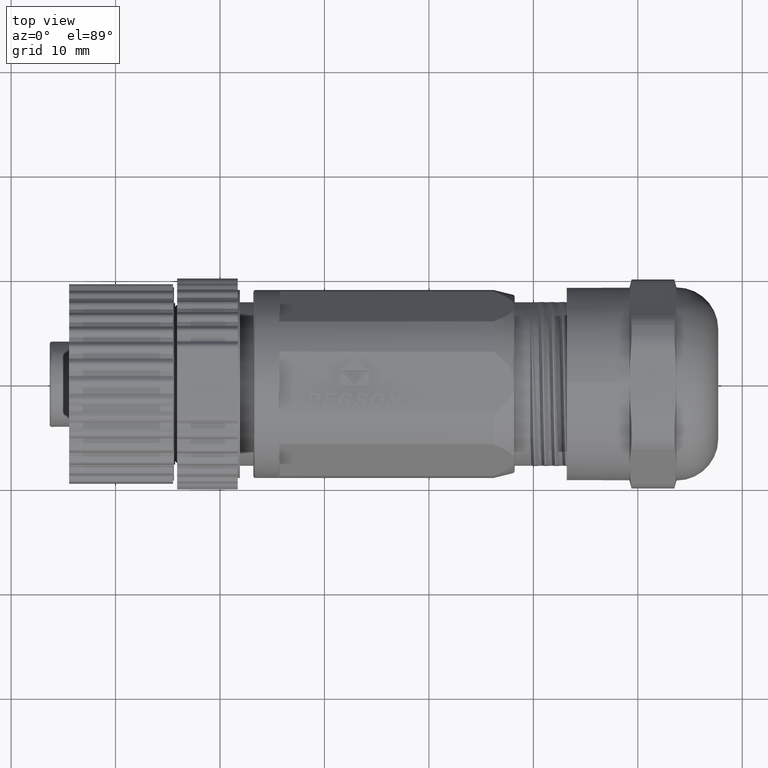
[diagram: clean part render]
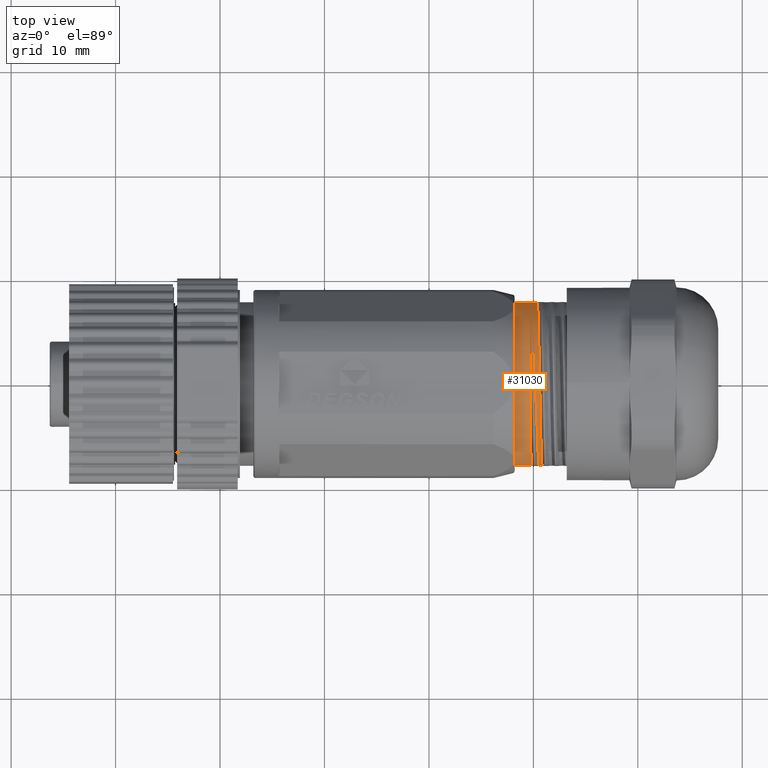
[diagram: same view with one face highlighted and labeled with its STEP entity id]
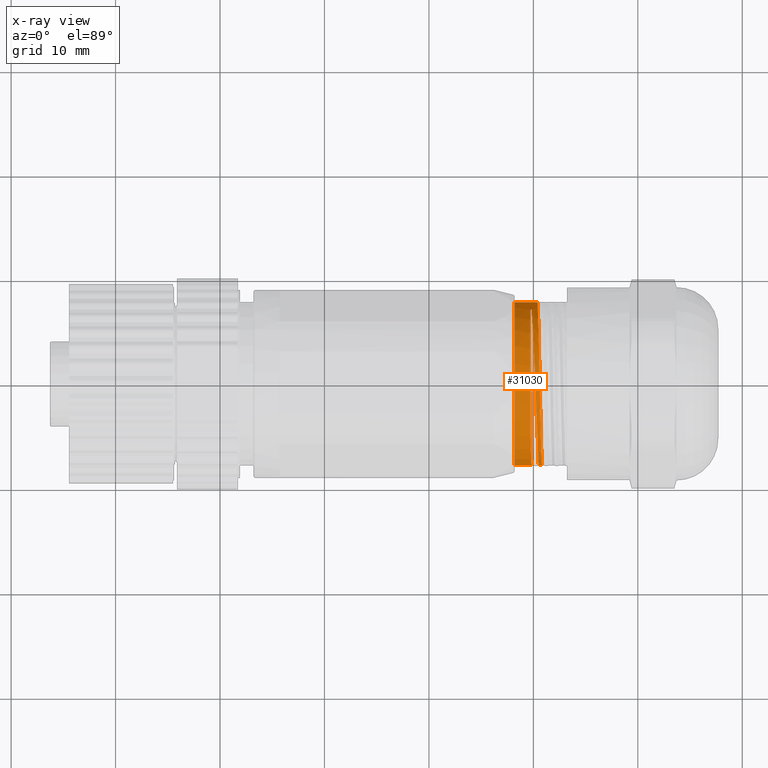
[diagram: x-ray of the same camera — body ghosted, the highlighted face saturated]
A machine part, top view. The second image highlights one B-rep face of the part: STEP entity #31030.
The next image is the same camera in x-ray: the body ghosted, the highlighted face saturated — about 0% of this face is hidden behind the body in this view.
In plain terms, the highlighted cylindrical surface (partial cylindrical patch) has radius 7.95 mm, axis along (1, 0, 0).
Its self-contained STEP definition (entity closure, byte-faithful):
#8304=CARTESIAN_POINT('',(3.82E1,0.E0,0.E0));
#8305=DIRECTION('',(1.E0,0.E0,0.E0));
#8306=DIRECTION('',(0.E0,9.811320754717E-1,1.933386936974E-1));
#8307=AXIS2_PLACEMENT_3D('',#8304,#8305,#8306);
#8322=DIRECTION('',(1.E0,0.E0,0.E0));
#8323=VECTOR('',#8322,1.620241579782E0);
#8324=CARTESIAN_POINT('',(3.82E1,-7.8E0,1.537042614894E0));
#8325=LINE('',#8324,#8323);
#8326=DIRECTION('',(1.E0,0.E0,0.E0));
#8327=VECTOR('',#8326,2.182173196551E0);
#8328=CARTESIAN_POINT('',(3.82E1,7.8E0,1.537042614894E0));
#8329=LINE('',#8328,#8327);
#8330=CARTESIAN_POINT('',(4.038217319655E1,7.8E0,1.537042614894E0));
#8331=CARTESIAN_POINT('',(4.038622938475E1,7.760827266867E0,1.735831715129E0));
#8332=CARTESIAN_POINT('',(4.039434176112E1,7.667275764137E0,2.130413347465E0));
#8333=CARTESIAN_POINT('',(4.040651056945E1,7.482144888795E0,2.709849489798E0));
#8334=CARTESIAN_POINT('',(4.041867889007E1,7.253304538971E0,3.273429133773E0));
#8335=CARTESIAN_POINT('',(4.043084718783E1,6.982087811040E0,3.817883133839E0));
#8336=CARTESIAN_POINT('',(4.044301600849E1,6.670060897638E0,4.340051131230E0));
#8337=CARTESIAN_POINT('',(4.045518327782E1,6.319109572403E0,4.836799956664E0));
#8338=CARTESIAN_POINT('',(4.046735314528E1,5.931156453766E0,5.305389541741E0));
#8339=CARTESIAN_POINT('',(4.047952041806E1,5.508634302172E0,5.742884139079E0));
#8340=CARTESIAN_POINT('',(4.049169029249E1,5.053833660937E0,6.146914700728E0));
#8341=CARTESIAN_POINT('',(4.050385865026E1,4.569557515119E0,6.514975843260E0));
#8342=CARTESIAN_POINT('',(4.051602742409E1,4.058567036391E0,6.844985299310E0));
#8343=CARTESIAN_POINT('',(4.052819661207E1,3.523842094973E0,7.135005961749E0));
#8344=CARTESIAN_POINT('',(4.054036455984E1,2.968583565638E0,7.383310809688E0));
#8345=CARTESIAN_POINT('',(4.055253322050E1,2.395948165845E0,7.588491895593E0));
#8346=CARTESIAN_POINT('',(4.056470168673E1,1.809322408597E0,7.749330760989E0));
#8347=CARTESIAN_POINT('',(4.057687028514E1,1.212118774231E0,7.864892706004E0));
#8348=CARTESIAN_POINT('',(4.058903881677E1,6.078361543433E-1,7.934502699377E0));
#8349=CARTESIAN_POINT('',(4.060120865585E1,-6.326447275182E-5,
7.957748673614E0));
#8350=CARTESIAN_POINT('',(4.061337595943E1,-6.078363800975E-1,
7.934502605495E0));
#8351=CARTESIAN_POINT('',(4.062554696938E1,-1.212241018681E0,7.864873954325E0));
#8352=CARTESIAN_POINT('',(4.063771313374E1,-1.809324755569E0,7.749330102319E0));
#8353=CARTESIAN_POINT('',(4.064988398812E1,-2.396063983764E0,7.588455506329E0));
#8354=CARTESIAN_POINT('',(4.066205027167E1,-2.968586111763E0,7.383309206923E0));
#8355=CARTESIAN_POINT('',(4.067422015377E1,-3.523931253318E0,7.134962252670E0));
#8356=CARTESIAN_POINT('',(4.068638737125E1,-4.058567595430E0,6.844984067988E0));
#8357=CARTESIAN_POINT('',(4.069855746639E1,-4.569612459190E0,6.514937709474E0));
#8358=CARTESIAN_POINT('',(4.071072449916E1,-5.053833978925E0,6.146913701750E0));
#8359=CARTESIAN_POINT('',(4.072289524131E1,-5.508666237939E0,5.742853792256E0));
#8360=CARTESIAN_POINT('',(4.073506165258E1,-5.931157050942E0,5.305388517901E0));
#8361=CARTESIAN_POINT('',(4.074723219279E1,-6.319130644188E0,4.836772468193E0));
#8362=CARTESIAN_POINT('',(4.075939878522E1,-6.670061510806E0,4.340050409771E0));
#8363=CARTESIAN_POINT('',(4.077156843530E1,-6.982108163634E0,3.817846074793E0));
#8364=CARTESIAN_POINT('',(4.078373589691E1,-7.253304361798E0,3.273428411550E0));
#8365=CARTESIAN_POINT('',(4.079590465701E1,-7.482152768921E0,2.709828449539E0));
#8366=CARTESIAN_POINT('',(4.080807301644E1,-7.667275249289E0,2.130413110047E0));
#8367=CARTESIAN_POINT('',(4.081618539176E1,-7.760827268600E0,1.735831706336E0));
#8368=CARTESIAN_POINT('',(4.082024157978E1,-7.8E0,1.537042614894E0));
#8370=DIRECTION('',(1.E0,0.E0,0.E0));
#8371=VECTOR('',#8370,3.024147763332E-1);
#8372=CARTESIAN_POINT('',(4.051782680345E1,-7.8E0,1.537042614894E0));
#8373=LINE('',#8372,#8371);
#8374=CARTESIAN_POINT('',(4.051782680345E1,-7.8E0,1.537042614894E0));
#8375=CARTESIAN_POINT('',(4.051385762572E1,-7.761667572490E0,1.731567432673E0));
#8376=CARTESIAN_POINT('',(4.050591932563E1,-7.670436088249E0,2.117742801686E0));
#8377=CARTESIAN_POINT('',(4.049401784676E1,-7.490792767687E0,2.684882928287E0));
#8378=CARTESIAN_POINT('',(4.048210492376E1,-7.269034089386E0,3.237532378042E0));
#8379=CARTESIAN_POINT('',(4.047020682830E1,-7.006927604644E0,3.771404273724E0));
#8380=CARTESIAN_POINT('',(4.045829212096E1,-6.705230186155E0,4.284904883748E0));
#8381=CARTESIAN_POINT('',(4.044639423451E1,-6.366472529169E0,4.773729822990E0));
#8382=CARTESIAN_POINT('',(4.043448145652E1,-5.991670954658E0,5.236453769495E0));
#8383=CARTESIAN_POINT('',(4.042258020724E1,-5.583714375782E0,5.669440387270E0));
#8384=CARTESIAN_POINT('',(4.041464197830E1,-5.290793117576E0,5.937113519168E0));
#8385=CARTESIAN_POINT('',(4.041067282718E1,-5.139531438168E0,6.065287841157E0));
#8387=CARTESIAN_POINT('',(4.041067282718E1,-5.139531438168E0,6.065287841157E0));
#8388=CARTESIAN_POINT('',(4.040237388830E1,-4.981397948459E0,6.199285115989E0));
#8389=CARTESIAN_POINT('',(4.038577602974E1,-4.654642692237E0,6.454900183929E0));
#8390=CARTESIAN_POINT('',(4.036088721110E1,-4.136226505439E0,6.798763175014E0));
#8391=CARTESIAN_POINT('',(4.033598262691E1,-3.592177904885E0,7.101246991048E0));
#8392=CARTESIAN_POINT('',(4.031110009479E1,-3.026664332558E0,7.360084397675E0));
#8393=CARTESIAN_POINT('',(4.028618999294E1,-2.442007598226E0,7.574170215103E0));
#8394=CARTESIAN_POINT('',(4.026131304192E1,-1.843209391742E0,7.741712283077E0));
#8395=CARTESIAN_POINT('',(4.023639807717E1,-1.232221353256E0,7.862130560077E0));
#8396=CARTESIAN_POINT('',(4.021152519747E1,-6.147339983466E-1,
7.934331896194E0));
#8397=CARTESIAN_POINT('',(4.018660644699E1,7.647907405651E-3,7.958104431575E0));
#8398=CARTESIAN_POINT('',(4.016173569782E1,6.287912429341E-1,7.933229481044E0));
#8399=CARTESIAN_POINT('',(4.013681527137E1,1.247319620917E0,7.859751569938E0));
#8400=CARTESIAN_POINT('',(4.011194503330E1,1.856991302023E0,7.738415504266E0));
#8401=CARTESIAN_POINT('',(4.008702553593E1,2.456499659247E0,7.569486000097E0));
#8402=CARTESIAN_POINT('',(4.006215429250E1,3.039848847718E0,7.354644650643E0));
#8403=CARTESIAN_POINT('',(4.003723689132E1,3.605675020468E0,7.094407925115E0));
#8404=CARTESIAN_POINT('',(4.001236307023E1,4.148489513478E0,6.791282030250E0));
#8405=CARTESIAN_POINT('',(3.998744792376E1,4.666821025305E0,6.446108040526E0));
#8406=CARTESIAN_POINT('',(3.996257071818E1,5.155851372116E0,6.062067778110E0));
#8407=CARTESIAN_POINT('',(3.993765917294E1,5.614016842919E0,5.640421555866E0));
#8408=CARTESIAN_POINT('',(3.991277763814E1,6.037320231040E0,5.184805808252E0));
#8409=CARTESIAN_POINT('',(3.988787247817E1,6.424109952336E0,4.697059067049E0));
#8410=CARTESIAN_POINT('',(3.986298429721E1,6.771359022146E0,4.180924002602E0));
#8411=CARTESIAN_POINT('',(3.984638646800E1,6.975348680468E0,3.819682197403E0));
#8412=CARTESIAN_POINT('',(3.983808754524E1,7.070128950125E0,3.635350963607E0));
#8414=DIRECTION('',(-1.E0,1.421086134073E-14,-6.039616069808E-14));
#8415=VECTOR('',#8414,1.249999417213E-1);
#8416=CARTESIAN_POINT('',(3.983808754524E1,7.070128950125E0,3.635350963607E0));
#8417=LINE('',#8416,#8415);
#8418=CARTESIAN_POINT('',(3.971308760352E1,0.E0,0.E0));
#8419=DIRECTION('',(1.E0,0.E0,0.E0));
#8420=DIRECTION('',(0.E0,8.893243962422E-1,4.572768507682E-1));
#8421=AXIS2_PLACEMENT_3D('',#8418,#8419,#8420);
#8423=CARTESIAN_POINT('',(3.971308760352E1,-5.139531438168E0,6.065287841157E0));
#8424=CARTESIAN_POINT('',(3.971705675463E1,-5.290793117576E0,5.937113519168E0));
#8425=CARTESIAN_POINT('',(3.972499498357E1,-5.583714375782E0,5.669440387270E0));
#8426=CARTESIAN_POINT('',(3.973689623285E1,-5.991670954658E0,5.236453769495E0));
#8427=CARTESIAN_POINT('',(3.974880901085E1,-6.366472529169E0,4.773729822991E0));
#8428=CARTESIAN_POINT('',(3.976070689730E1,-6.705230186155E0,4.284904883748E0));
#8429=CARTESIAN_POINT('',(3.977262160463E1,-7.006927604644E0,3.771404273724E0));
#8430=CARTESIAN_POINT('',(3.978451970010E1,-7.269034089386E0,3.237532378042E0));
#8431=CARTESIAN_POINT('',(3.979643262309E1,-7.490792767687E0,2.684882928287E0));
#8432=CARTESIAN_POINT('',(3.980833410196E1,-7.670436088249E0,2.117742801686E0));
#8433=CARTESIAN_POINT('',(3.981627240205E1,-7.761667572490E0,1.731567432673E0));
#8434=CARTESIAN_POINT('',(3.982024157978E1,-7.8E0,1.537042614894E0));
#10437=CARTESIAN_POINT('',(3.971308760352E1,7.070128950125E0,3.635350963607E0));
#10469=CARTESIAN_POINT('',(3.983808754524E1,7.070128950125E0,3.635350963607E0));
#22947=VERTEX_POINT('',#10437);
#22949=VERTEX_POINT('',#10469);
#22950=CARTESIAN_POINT('',(3.971308760352E1,-5.139531438168E0,
6.065287841157E0));
#22951=VERTEX_POINT('',#22950);
#22952=CARTESIAN_POINT('',(4.041067282718E1,-5.139531438168E0,
6.065287841157E0));
#22953=VERTEX_POINT('',#22952);
#22954=CARTESIAN_POINT('',(3.82E1,-7.8E0,1.537042614894E0));
#22955=CARTESIAN_POINT('',(3.982024157978E1,-7.8E0,1.537042614894E0));
#22956=VERTEX_POINT('',#22954);
#22957=VERTEX_POINT('',#22955);
#22958=CARTESIAN_POINT('',(4.051782680345E1,-7.8E0,1.537042614894E0));
#22959=CARTESIAN_POINT('',(4.082024157978E1,-7.8E0,1.537042614894E0));
#22960=VERTEX_POINT('',#22958);
#22961=VERTEX_POINT('',#22959);
#22970=CARTESIAN_POINT('',(3.82E1,7.8E0,1.537042614894E0));
#22971=CARTESIAN_POINT('',(4.038217319655E1,7.8E0,1.537042614894E0));
#22972=VERTEX_POINT('',#22970);
#22973=VERTEX_POINT('',#22971);
#31004=CARTESIAN_POINT('',(4.92E1,0.E0,0.E0));
#31005=DIRECTION('',(1.E0,0.E0,0.E0));
#31006=DIRECTION('',(0.E0,1.E0,0.E0));
#31007=AXIS2_PLACEMENT_3D('',#31004,#31005,#31006);
#31008=CYLINDRICAL_SURFACE('',#31007,7.95E0);
#31010=ORIENTED_EDGE('',*,*,#31009,.F.);
#31011=ORIENTED_EDGE('',*,*,#30993,.F.);
#31013=ORIENTED_EDGE('',*,*,#31012,.T.);
#31015=ORIENTED_EDGE('',*,*,#31014,.T.);
#31017=ORIENTED_EDGE('',*,*,#31016,.F.);
#31019=ORIENTED_EDGE('',*,*,#31018,.T.);
#31021=ORIENTED_EDGE('',*,*,#31020,.T.);
#31023=ORIENTED_EDGE('',*,*,#31022,.T.);
#31025=ORIENTED_EDGE('',*,*,#31024,.T.);
#31027=ORIENTED_EDGE('',*,*,#31026,.T.);
#31028=EDGE_LOOP('',(#31010,#31011,#31013,#31015,#31017,#31019,#31021,#31023,
#31025,#31027));
#31029=FACE_OUTER_BOUND('',#31028,.F.);
#31030=ADVANCED_FACE('',(#31029),#31008,.T.);
#8308=CIRCLE('',#8307,7.95E0);
#8369=B_SPLINE_CURVE_WITH_KNOTS('',3,(#8330,#8331,#8332,#8333,#8334,#8335,#8336,
#8337,#8338,#8339,#8340,#8341,#8342,#8343,#8344,#8345,#8346,#8347,#8348,#8349,
#8350,#8351,#8352,#8353,#8354,#8355,#8356,#8357,#8358,#8359,#8360,#8361,#8362,
#8363,#8364,#8365,#8366,#8367,#8368),.UNSPECIFIED.,.F.,.F.,(4,1,1,1,1,1,1,1,1,1,
1,1,1,1,1,1,1,1,1,1,1,1,1,1,1,1,1,1,1,1,1,1,1,1,1,1,4),(0.E0,2.777777777778E-2,
5.555555555556E-2,8.333333333333E-2,1.111111111111E-1,1.388888888889E-1,
1.666666666667E-1,1.944444444444E-1,2.222222222222E-1,2.5E-1,2.777777777778E-1,
3.055555555556E-1,3.333333333333E-1,3.611111111111E-1,3.888888888889E-1,
4.166666666667E-1,4.444444444444E-1,4.722222222222E-1,5.E-1,5.277777777778E-1,
5.555555555556E-1,5.833333333333E-1,6.111111111111E-1,6.388888888889E-1,
6.666666666667E-1,6.944444444444E-1,7.222222222222E-1,7.5E-1,7.777777777778E-1,
8.055555555556E-1,8.333333333333E-1,8.611111111111E-1,8.888888888889E-1,
9.166666666667E-1,9.444444444444E-1,9.722222222222E-1,1.E0),.UNSPECIFIED.);
#8386=B_SPLINE_CURVE_WITH_KNOTS('',3,(#8374,#8375,#8376,#8377,#8378,#8379,#8380,
#8381,#8382,#8383,#8384,#8385),.UNSPECIFIED.,.F.,.F.,(4,1,1,1,1,1,1,1,1,4),
(0.E0,1.111111111111E-1,2.222222222222E-1,3.333333333333E-1,4.444444444444E-1,
5.555555555556E-1,6.666666666667E-1,7.777777777778E-1,8.888888888889E-1,1.E0),
.UNSPECIFIED.);
#8413=B_SPLINE_CURVE_WITH_KNOTS('',3,(#8387,#8388,#8389,#8390,#8391,#8392,#8393,
#8394,#8395,#8396,#8397,#8398,#8399,#8400,#8401,#8402,#8403,#8404,#8405,#8406,
#8407,#8408,#8409,#8410,#8411,#8412),.UNSPECIFIED.,.F.,.F.,(4,1,1,1,1,1,1,1,1,1,
1,1,1,1,1,1,1,1,1,1,1,1,1,4),(0.E0,4.347826086957E-2,8.695652173913E-2,
1.304347826087E-1,1.739130434783E-1,2.173913043478E-1,2.608695652174E-1,
3.043478260870E-1,3.478260869565E-1,3.913043478261E-1,4.347826086957E-1,
4.782608695652E-1,5.217391304348E-1,5.652173913043E-1,6.086956521739E-1,
6.521739130435E-1,6.956521739130E-1,7.391304347826E-1,7.826086956522E-1,
8.260869565217E-1,8.695652173913E-1,9.130434782609E-1,9.565217391304E-1,1.E0),
.UNSPECIFIED.);
#8422=CIRCLE('',#8421,7.95E0);
#8435=B_SPLINE_CURVE_WITH_KNOTS('',3,(#8423,#8424,#8425,#8426,#8427,#8428,#8429,
#8430,#8431,#8432,#8433,#8434),.UNSPECIFIED.,.F.,.F.,(4,1,1,1,1,1,1,1,1,4),
(0.E0,1.111111111111E-1,2.222222222222E-1,3.333333333333E-1,4.444444444444E-1,
5.555555555556E-1,6.666666666667E-1,7.777777777778E-1,8.888888888889E-1,1.E0),
.UNSPECIFIED.);
#30993=EDGE_CURVE('',#22972,#22956,#8308,.T.);
#31009=EDGE_CURVE('',#22956,#22957,#8325,.T.);
#31012=EDGE_CURVE('',#22972,#22973,#8329,.T.);
#31014=EDGE_CURVE('',#22973,#22961,#8369,.T.);
#31016=EDGE_CURVE('',#22960,#22961,#8373,.T.);
#31018=EDGE_CURVE('',#22960,#22953,#8386,.T.);
#31020=EDGE_CURVE('',#22953,#22949,#8413,.T.);
#31022=EDGE_CURVE('',#22949,#22947,#8417,.T.);
#31024=EDGE_CURVE('',#22947,#22951,#8422,.T.);
#31026=EDGE_CURVE('',#22951,#22957,#8435,.T.);